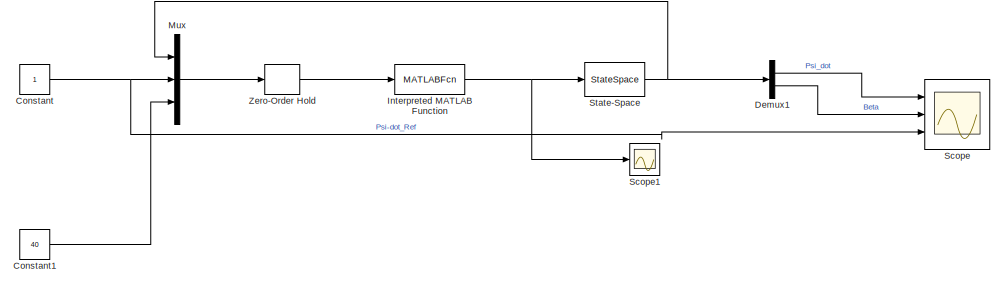
[diagram: root canvas - part 1/2, full width, top band]
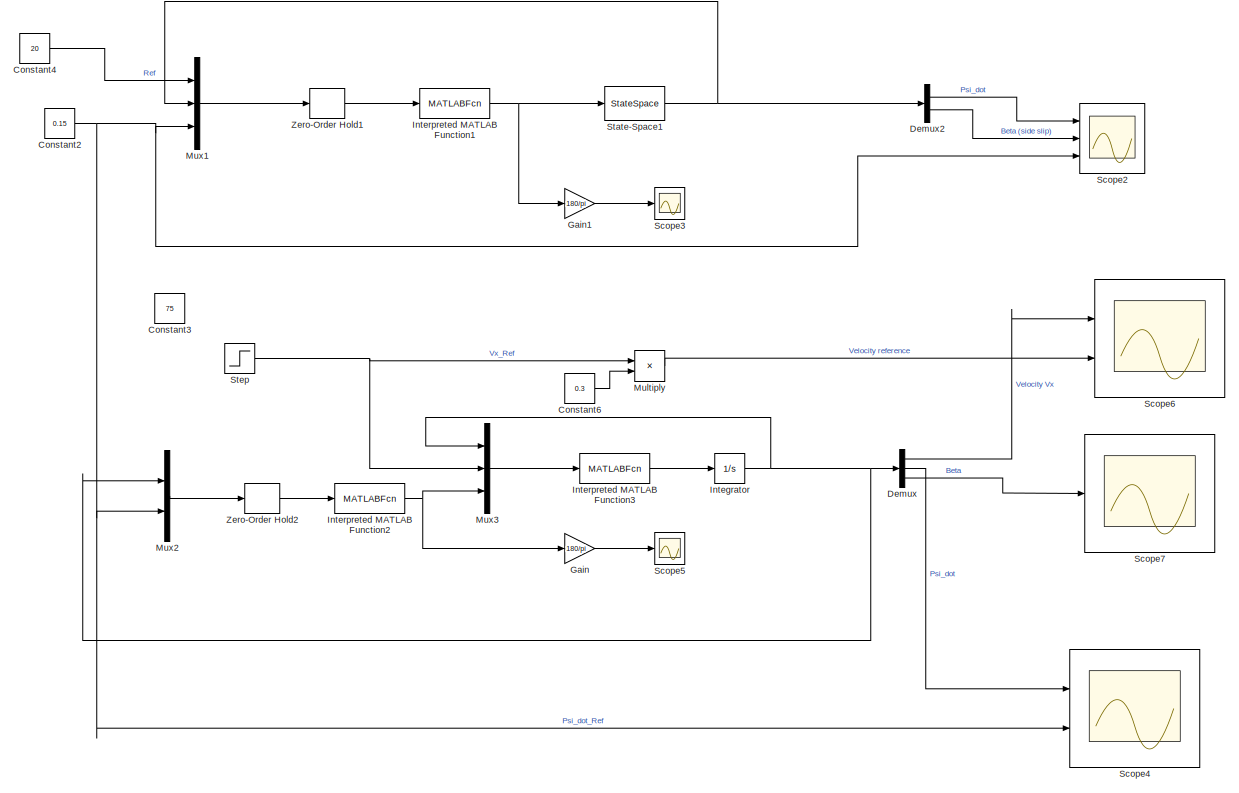
[diagram: root canvas - part 2/2, full width, bottom band]
MODEL slx_169800b7d20f
KIND model
CONFIG AbsTol = auto
CONFIG EnableMultiTasking = off
CONFIG FixedStep = auto
CONFIG MaxStep = auto
CONFIG MinStep = auto
CONFIG RelTol = 1e-3
CONFIG SampleTimeConstraint = Unconstrained
CONFIG SolverName = VariableStepAuto
CONFIG StartTime = 0.0
CONFIG StopTime = 10
BLOCK [Constant] Constant
  Commented = on
BLOCK [Constant] Constant1
  Commented = on
  Value = 40
BLOCK [Constant] Constant2
  Value = 0.15
BLOCK [Constant] Constant3
  Value = 75
BLOCK [Constant] Constant4
  Value = 20
BLOCK [Constant] Constant6
  Value = 0.3
BLOCK [Demux] Demux
  Outputs = 3
  Ports = [1, 3]
BLOCK [Demux] Demux1
  Commented = on
  Outputs = 2
  Ports = [1, 2]
BLOCK [Demux] Demux2
  Outputs = 2
  Ports = [1, 2]
BLOCK [Gain] Gain
  Gain = 180/pi
  Multiplication = Matrix(K*u) (u vector)
BLOCK [Gain] Gain1
  Gain = 180/pi
  Multiplication = Matrix(K*u) (u vector)
BLOCK [Integrator] Integrator
  InitialCondition = [20 ; 0 ; 0]
  Ports = [1, 1]
BLOCK [MATLABFcn] Interpreted MATLAB Function
  Commented = on
  MATLABFcn = MPC_Sim(u(1),u(2),u(3),u(4),controller)
  OutputDimensions = 1
  Ports = [1, 1]
BLOCK [MATLABFcn] Interpreted MATLAB Function1
  MATLABFcn = MPC_Sim(u(1),u(2),u(3),u(4),controller)
  OutputDimensions = 1
  Ports = [1, 1]
BLOCK [MATLABFcn] Interpreted MATLAB Function2
  MATLABFcn = MPC_Sim(u(1),u(2),u(3),u(4),controller)
  OutputDimensions = 1
  Ports = [1, 1]
BLOCK [MATLABFcn] Interpreted MATLAB Function3
  MATLABFcn = LongDynWorking(u(1),u(2),u(3),u(4),u(5),0,1)
  OutputDimensions = 3
  Ports = [1, 1]
BLOCK [Product] Multiply
  Ports = [2, 1]
BLOCK [Mux] Mux
  Commented = on
  DisplayOption = bar
  Inputs = 3
  Ports = [3, 1]
BLOCK [Mux] Mux1
  DisplayOption = bar
  Inputs = 3
  Ports = [3, 1]
BLOCK [Mux] Mux2
  DisplayOption = bar
  Inputs = 2
  Ports = [2, 1]
BLOCK [Mux] Mux3
  DisplayOption = bar
  Inputs = 3
  Ports = [3, 1]
BLOCK [Scope] Scope
  Commented = on
  Floating = off
  NumInputPorts = 3
  Ports = [3]
  ScopeSpecificationString = Simulink.scopes.TimeScopeBlockCfg('CurrentConfiguration', extmgr.ConfigurationSet(extmgr.Configuration('Core','General UI',true),extmgr.Configuration('Core','Source UI',true),extmgr.Configuration('Sources','WiredSimulink',true),extmgr.Configuration('Visuals','Time Domain',true,'SerializedDisplays',{struct('MinYLimReal','-0.125','MaxYLimReal','1.125','YLabelReal','','MinYLimMag','0.00000','MaxYLimM...<+1363ch>
BLOCK [Scope] Scope1
  Commented = on
  Floating = off
  NumInputPorts = 1
  Ports = [1]
  ScopeSpecificationString = Simulink.scopes.TimeScopeBlockCfg('CurrentConfiguration', extmgr.ConfigurationSet(extmgr.Configuration('Core','General UI',true),extmgr.Configuration('Core','Source UI',true),extmgr.Configuration('Sources','WiredSimulink',true,'DataLoggingVariableName','ScopeData1'),extmgr.Configuration('Visuals','Time Domain',true,'SerializedDisplays',{struct('MinYLimReal','0.04604','MaxYLimReal','0.70761','YLabe...<+1412ch>
BLOCK [Scope] Scope2
  Floating = off
  NumInputPorts = 3
  Ports = [3]
  ScopeSpecificationString = Simulink.scopes.TimeScopeBlockCfg('CurrentConfiguration', extmgr.ConfigurationSet(extmgr.Configuration('Core','General UI',true),extmgr.Configuration('Core','Source UI',true),extmgr.Configuration('Sources','WiredSimulink',true,'DataLoggingVariableName','ScopeData1'),extmgr.Configuration('Visuals','Time Domain',true,'SerializedDisplays',{struct('MinYLimReal','-0.08339','MaxYLimReal','0.34882','YLab...<+1782ch>
BLOCK [Scope] Scope3
  Floating = off
  NumInputPorts = 1
  Ports = [1]
  ScopeSpecificationString = Simulink.scopes.TimeScopeBlockCfg('CurrentConfiguration', extmgr.ConfigurationSet(extmgr.Configuration('Core','General UI',true),extmgr.Configuration('Core','Source UI',true),extmgr.Configuration('Sources','WiredSimulink',true,'DataLoggingVariableName','ScopeData3'),extmgr.Configuration('Visuals','Time Domain',true,'SerializedDisplays',{struct('MinYLimReal','0.04604','MaxYLimReal','0.70761','YLabe...<+1412ch>
BLOCK [Scope] Scope4
  Floating = off
  NumInputPorts = 2
  Ports = [2]
  ScopeSpecificationString = Simulink.scopes.TimeScopeBlockCfg('CurrentConfiguration', extmgr.ConfigurationSet(extmgr.Configuration('Core','General UI',true),extmgr.Configuration('Core','Source UI',true),extmgr.Configuration('Sources','WiredSimulink',true,'DataLoggingVariableName','ScopeData4','SampleTime','Ts'),extmgr.Configuration('Visuals','Time Domain',true,'SerializedDisplays',{struct('MinYLimReal','-0.01875','MaxYLimRea...<+1911ch>
BLOCK [Scope] Scope5
  Floating = off
  NumInputPorts = 1
  Ports = [1]
  ScopeSpecificationString = Simulink.scopes.TimeScopeBlockCfg('CurrentConfiguration', extmgr.ConfigurationSet(extmgr.Configuration('Core','General UI',true),extmgr.Configuration('Core','Source UI',true),extmgr.Configuration('Sources','WiredSimulink',true,'DataLoggingVariableName','ScopeData5'),extmgr.Configuration('Visuals','Time Domain',true,'SerializedDisplays',{struct('MinYLimReal','-0.15085','MaxYLimReal','12.79162','YLa...<+1534ch>
BLOCK [Scope] Scope6
  Floating = off
  NumInputPorts = 2
  Ports = [2]
  ScopeSpecificationString = Simulink.scopes.TimeScopeBlockCfg('CurrentConfiguration', extmgr.ConfigurationSet(extmgr.Configuration('Core','General UI',true),extmgr.Configuration('Core','Source UI',true),extmgr.Configuration('Sources','WiredSimulink',true,'DataLoggingVariableName','ScopeData2','SampleTime','Ts'),extmgr.Configuration('Visuals','Time Domain',true,'SerializedDisplays',{struct('MinYLimReal','14.03054','MaxYLimRea...<+1666ch>
BLOCK [Scope] Scope7
  Floating = off
  NumInputPorts = 1
  Ports = [1]
  ScopeSpecificationString = Simulink.scopes.TimeScopeBlockCfg('CurrentConfiguration', extmgr.ConfigurationSet(extmgr.Configuration('Core','General UI',true),extmgr.Configuration('Core','Source UI',true),extmgr.Configuration('Sources','WiredSimulink',true,'DataLoggingVariableName','ScopeData3','SampleTime','Ts'),extmgr.Configuration('Visuals','Time Domain',true,'SerializedDisplays',{struct('MinYLimReal','-0.05156','MaxYLimRea...<+1575ch>
BLOCK [StateSpace] State-Space
  A = A
  B = B
  C = eye(2)
  Commented = on
  D = [0;0]
  InitialCondition = 0
  Ports = [1, 1]
BLOCK [StateSpace] State-Space1
  A = A
  B = B
  C = eye(2)
  D = [0;0]
  InitialCondition = 0
  Ports = [1, 1]
BLOCK [Step] Step
  After = 50
  Before = 75
  SampleTime = 0
  Time = 5
BLOCK [ZeroOrderHold] Zero-Order Hold
  Commented = on
  SampleTime = Ts
BLOCK [ZeroOrderHold] Zero-Order Hold1
  SampleTime = Ts
BLOCK [ZeroOrderHold] Zero-Order Hold2
  SampleTime = Ts
LINE Constant1:1 -> Mux:3
NET Constant2:1 -> Mux1:3, Mux2:2, Scope2:3, Scope4:2
LINE Constant4:1 -> Mux1:1
LINE Constant6:1 -> Multiply:2
NET Constant:1 -> Mux:2, Scope:3
LINE Demux1:1 -> Scope:1
LINE Demux1:2 -> Scope:2
LINE Demux2:1 -> Scope2:1
LINE Demux2:2 -> Scope2:2
LINE Demux:1 -> Scope6:1
LINE Demux:2 -> Scope4:1
LINE Demux:3 -> Scope7:1
LINE Gain1:1 -> Scope3:1
LINE Gain:1 -> Scope5:1
NET Integrator:1 -> Demux:1, Mux2:1, Mux3:1
NET Interpreted MATLAB Function1:1 -> Gain1:1, State-Space1:1
NET Interpreted MATLAB Function2:1 -> Gain:1, Mux3:3
LINE Interpreted MATLAB Function3:1 -> Integrator:1
NET Interpreted MATLAB Function:1 -> Scope1:1, State-Space:1
LINE Multiply:1 -> Scope6:2
LINE Mux1:1 -> Zero-Order Hold1:1
LINE Mux2:1 -> Zero-Order Hold2:1
LINE Mux3:1 -> Interpreted MATLAB Function3:1
LINE Mux:1 -> Zero-Order Hold:1
NET State-Space1:1 -> Demux2:1, Mux1:2
NET State-Space:1 -> Demux1:1, Mux:1
NET Step:1 -> Multiply:1, Mux3:2
LINE Zero-Order Hold1:1 -> Interpreted MATLAB Function1:1
LINE Zero-Order Hold2:1 -> Interpreted MATLAB Function2:1
LINE Zero-Order Hold:1 -> Interpreted MATLAB Function:1
note: NET lines group one-source signal fan-out (src -> all destinations, sorted); 1:1 wires keep LINE
